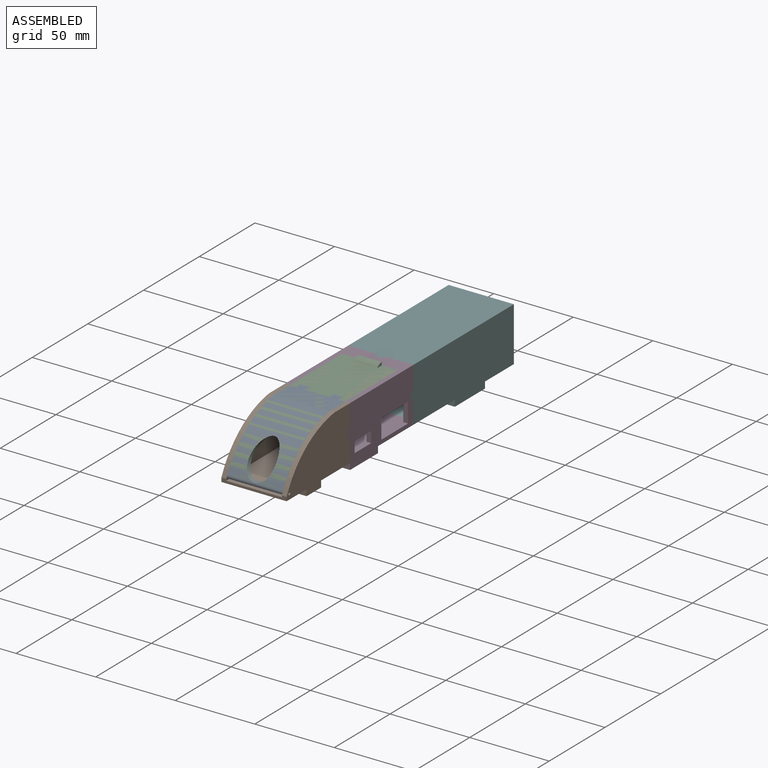
[diagram: assembled view]
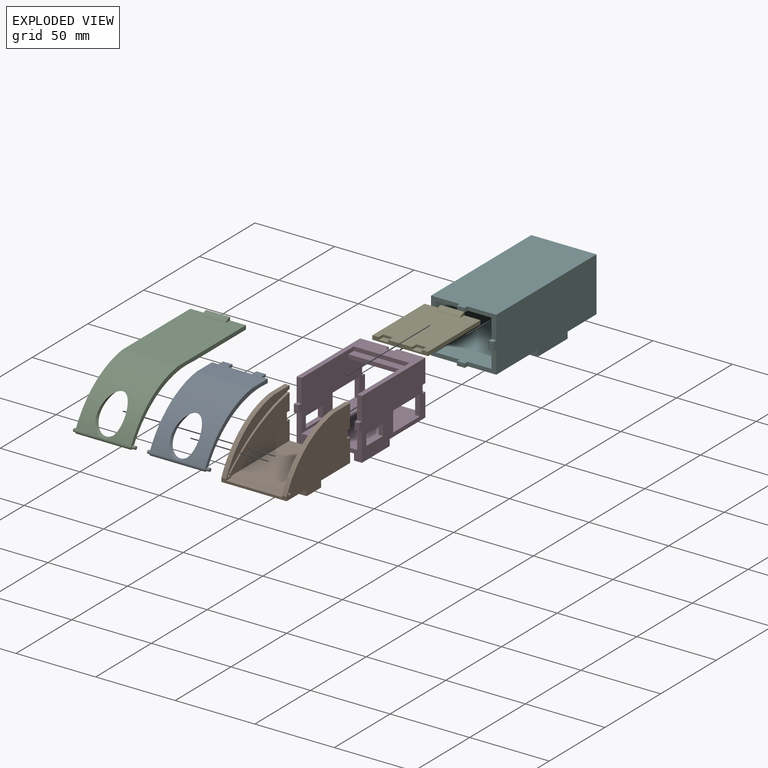
[diagram: exploded view]
GUIDED TOUR — MATED ASSEMBLY (Onshape document 684c22e2c444a2f3a1518ee3, AutoMate assembly 684c22e2c444a2f3a1518ee3_9fa53f2de91bdcdf4be7faaa_321a098ad9caceda1e651b26_default)

This assembly has 6 components, labeled P0..P5 below (a component is one placed occurrence of a part; the same part can appear more than once), held together by 5 mates. A mate is a constraint between two components; its type names the relative motion it leaves free:
  FASTENED — locks the two components together rigidly (no relative motion),
  REVOLUTE — leaves rotation about the listed axis free (a hinge).
Axis/direction vectors are unit vectors and 'through' points are millimeter coordinates, both in the assembly's world frame.

MATES
  1. FASTENED "Fastened 1": P5 <-> P3, direction (0.000, -1.000, 0.000) through (-108.95, 66.40, -22.27) mm
  2. REVOLUTE "Revolute 2": P2 <-> P1, axis (1.000, 0.000, 0.000) through (-89.45, -42.60, -20.02) mm
  3. REVOLUTE "Revolute 1": P0 <-> P1, axis (1.000, 0.000, 0.000) through (-89.45, -42.60, -20.02) mm
  4. FASTENED "Fastened 2": P3 <-> P1, direction (0.000, -1.000, 0.000) through (-108.95, 9.40, -22.27) mm
  5. FASTENED "Fastened 3": P4 <-> P0, direction (0.000, -1.000, 0.000) through (-108.95, 11.90, 9.10) mm

ASSEMBLY ORDER
  1. P2 — the base component [order heuristic]
  2. P0 — core [order heuristic]
  3. P4 [order verified]
  4. P1 [order verified]
  5. P3 [order verified]
  6. P5 [order verified]
(P4 verified with a relaxed clearance tolerance: the source model stores slight part interference there.)
Order-tag legend:
  [order verified] — this step's position reverses a verified removal order: the component was checked to insert without passing through the ones already placed.
  [order heuristic] — the first 2 components form the assembly's core: parts whose collision-free extraction could not be verified, listed in mate-graph order.

Of the 6 components, 4 carry the full construction recipe — the FeatureScript program that regenerates the part's solid from scratch; the rest are supplied as boundary geometry only.
Each toured component is shown spotlighted twice — in the assembled view, then in the exploded view, where a leader line traces a displaced component back to its assembled socket (saturated green if recipe-attached, orange if geometry-only; every other component desaturated gray) — followed by its recipe or geometry summary and the mates that hold it.
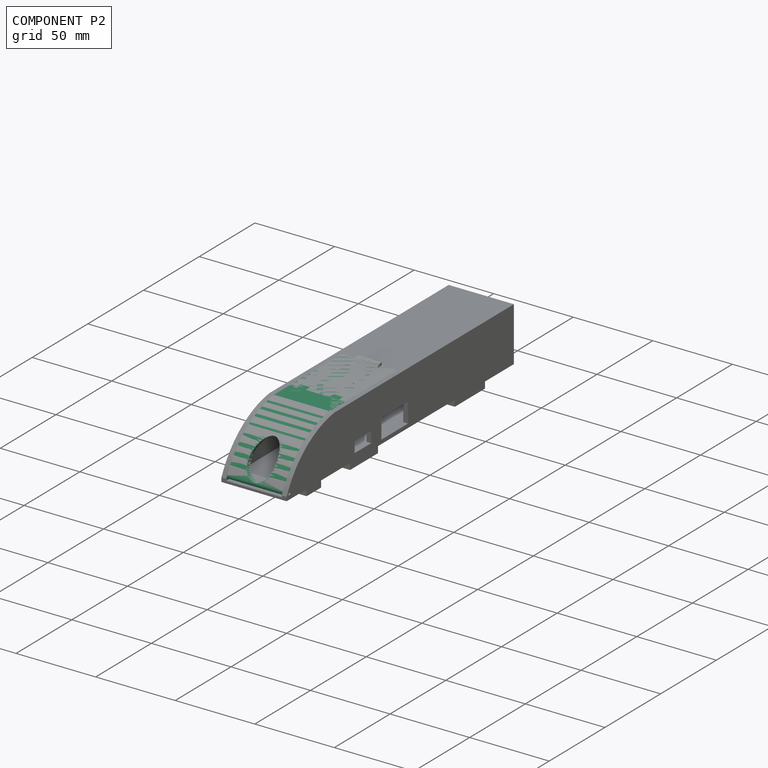
[diagram: component P2 — assembled]
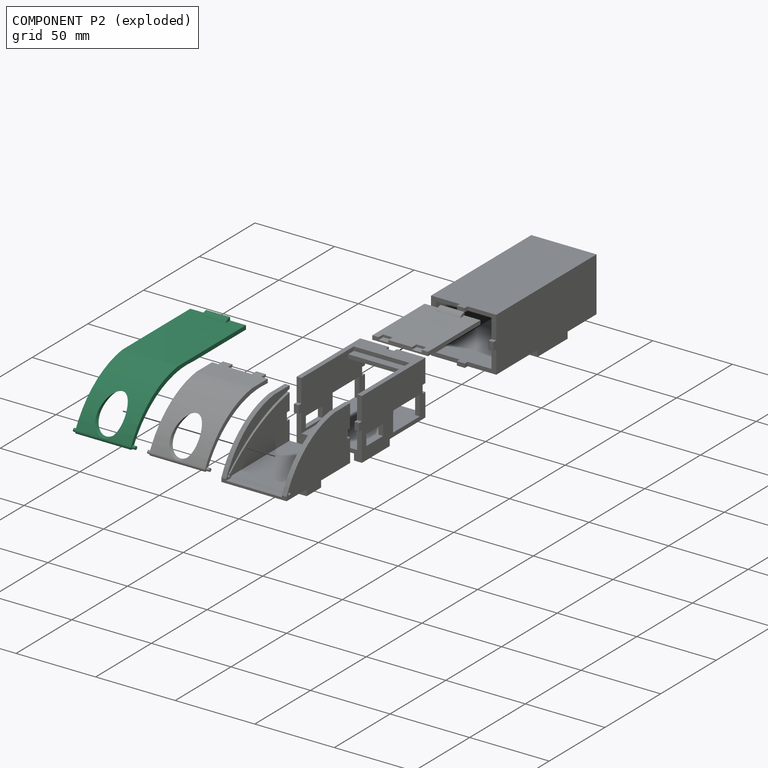
[diagram: component P2 — exploded]
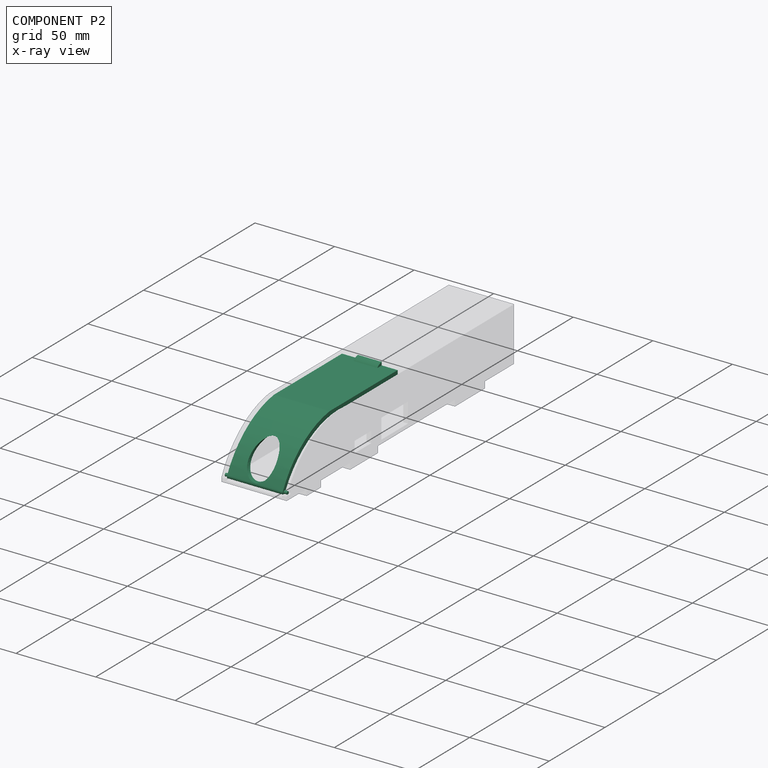
[diagram: component P2 — x-ray view]
COMPONENT P2 — recipe-attached (CADFS 00704037, mesh-verified: the recipe's output STEP matches this component's geometry to below the mesh-comparison resolution (tessellation chordal tolerance ~0.173 mm)).
Held by: REVOLUTE mate "Revolute 2" to P1.
Construction recipe (FeatureScript — the CAD program that rebuilds this solid; sketch coordinates are in the units given by the * unit suffixes, e.g. mm):

FeatureScript 1511;
import(path : "onshape/std/geometry.fs", version : "1511.0");
import(path : "onshape/std/common.fs", version : "1511.0");
const mm = millimeter;
const VERTEX = EntityType.VERTEX;
const EDGE = EntityType.EDGE;
const FACE = EntityType.FACE;
const BODY = EntityType.BODY;
function v(x, y){return vector(x, y);}
function OD(order){return orderDisambiguation(order);}
function OSD(set){return originalSetDisambiguation(set);}
function TD(topology){return topologyDisambiguation(topology);}
function TDD(query){return trueDependencyDisambiguation(query);}
function sQuery(a, b, c) {return sketchEntityQuery(a, b, c);}

annotation { "Feature Type Name" : "Feature", "Feature Type Description" : "" }
export const myFeature = defineFeature(function(context is Context, id is Id, definition is map)
    precondition{}
    {
        {
            var Q0;
            Q0=qCreatedBy(makeId("Top.planeOp"),FACE);
            var sketch = newSketch(context, id + "F0", { "sketchPlane" : qUnion([Q0])});
            skLineSegment(sketch, "E0.bottom", {"start": v(-17.4, 3.7) * mm, "end": v(17.6, 3.7) * mm});
            skLineSegment(sketch, "E0.top", {"start": v(-17.4, -53.3) * mm, "end": v(17.6, -53.3) * mm});
            skLineSegment(sketch, "E0.left", {"start": v(-17.4, 3.7) * mm, "end": v(-17.4, -53.3) * mm});
            skLineSegment(sketch, "E0.right", {"start": v(17.6, 3.7) * mm, "end": v(17.6, -53.3) * mm});
            skSolve(sketch);
        }
        {
            var Q0;
            Q0=makeQuery(id+"F0.imprint","IMPRINT",FACE,{"disambiguationData":[TD([[makeQuery(id+"F0.imprint","IMPRINT",EDGE,{"derivedFrom":sQuery(id+"F0.wireOp",EDGE,"E0.bottom")}),-1.0]])]});
            extrude(context, id + "F1", {"entities" : qUnion([Q0]), "depth" : 31.5 * mm, "offsetDistance" : 25 * mm});
        }
        {
            var Q0;
            Q0=makeQuery(id+"F1.opExtrude","SWEPT_FACE",FACE,{"disambiguationData":[OSD([sQuery(id+"F0.wireOp",EDGE,"E0.right")])]});
            var sketch = newSketch(context, id + "F2", { "sketchPlane" : qUnion([Q0])});
            skArc(sketch, "E1", {"start": v(3.7, 31.5) * mm, "mid": v(-29.97, 25.1) * mm, "end": v(-53.3, 0) * mm});
            skSolve(sketch);
        }
        {
            var Q0;
            Q0=makeQuery(id+"F1.opExtrude","SWEPT_FACE",FACE,{"disambiguationData":[OSD([sQuery(id+"F0.wireOp",EDGE,"E0.top")])]});
            var sketch = newSketch(context, id + "F3", { "sketchPlane" : qUnion([Q0])});
            skEllipse(sketch, "E2", {"center": v(0.1, 12) * mm, "majorRadius": 10 * mm, "minorRadius": 8.25 * mm, "majorAxis": v(0, -1)});
            skSolve(sketch);
        }
        {
            var Q0;
            Q0=makeQuery(id+"F3.imprint","IMPRINT",FACE,{"disambiguationData":[TD([[makeQuery(id+"F3.imprint","IMPRINT",EDGE,{"derivedFrom":sQuery(id+"F3.wireOp",EDGE,"E2")}),1.0]])]});
            extrude(context, id + "F4", {"entities" : qUnion([Q0]), "operationType" : NewBodyOperationType.REMOVE, "endBound" : BoundingType.THROUGH_ALL, "oppositeDirection" : true, "depth" : 25 * mm, "offsetDistance" : 25 * mm});
        }
        {
            var Q0;
            Q0=makeQuery(id+"F2.imprint","IMPRINT",FACE,{"disambiguationData":[TD([[makeQuery(id+"F2.imprint","IMPRINT",EDGE,{"derivedFrom":sQuery(id+"F2.wireOp",EDGE,"E1")}),-1.0]])]});
            extrude(context, id + "F5", {"entities" : qUnion([Q0]), "operationType" : NewBodyOperationType.REMOVE, "endBound" : BoundingType.THROUGH_ALL, "oppositeDirection" : true, "depth" : 25 * mm, "offsetDistance" : 25 * mm});
        }
        {
            var Q0;
            Q0=makeQuery(id+"F1.opExtrude","SWEPT_FACE",FACE,{"disambiguationData":[OSD([sQuery(id+"F0.wireOp",EDGE,"E0.right")])]});
            var sketch = newSketch(context, id + "F6", { "sketchPlane" : qUnion([Q0])});
            skArc(sketch, "E3", {"start": v(3.7, 29) * mm, "mid": v(-28, 22.87) * mm, "end": v(-50.8, 0) * mm});
            skSolve(sketch);
        }
        {
            var Q0;
            {var subQ0=sQuery(id+"F6.wireOp",EDGE,"E3");Q0=makeQuery(id+"F6.imprint","IMPRINT",FACE,{"disambiguationData":[TD([[makeQuery(id+"F6.imprint","IMPRINT",EDGE,{"derivedFrom":subQ0}),1.0]])]});}
            extrude(context, id + "F7", {"entities" : qUnion([Q0]), "operationType" : NewBodyOperationType.REMOVE, "endBound" : BoundingType.THROUGH_ALL, "oppositeDirection" : true, "depth" : 25 * mm, "offsetDistance" : 25 * mm});
        }
        {
            var Q0;
            Q0=makeQuery(id+"F1.opExtrude","SWEPT_FACE",FACE,{"disambiguationData":[OSD([sQuery(id+"F0.wireOp",EDGE,"E0.right")])]});
            var sketch = newSketch(context, id + "F8", { "sketchPlane" : qUnion([Q0])});
            skCircle(sketch, "E4", {"center": v(-50.8, 1) * mm, "radius": 1 * mm});
            skSolve(sketch);
        }
        {
            var Q0;
            {var subQ0=sQuery(id+"F8.wireOp",EDGE,"E4");var subQ1=makeQuery(id+"F7.boolean.opBoolean","COPY",EDGE,{"derivedFrom":makeQuery(id+"F7.opExtrude","CAP_EDGE",EDGE,{"disambiguationData":[OSD([sQuery(id+"F6.wireOp",EDGE,"E3")])],"isStart":true})});var subQ3=makeQuery(id+"F8.imprint","INTERSECT",VERTEX,{"derivedFrom":[subQ1,subQ0]});Q0=makeQuery(id+"F8.imprint","IMPRINT",FACE,{"disambiguationData":[TD([[makeQuery(id+"F8.imprint","IMPRINT",EDGE,{"disambiguationData":[TD([[subQ3,-1.0]])],"derivedFrom":subQ0}),1.0]])]});}
            var Q1;
            {var subQ0=sQuery(id+"F8.wireOp",EDGE,"E4");var subQ1=makeQuery(id+"F7.boolean.opBoolean","COPY",EDGE,{"derivedFrom":makeQuery(id+"F7.opExtrude","CAP_EDGE",EDGE,{"disambiguationData":[OSD([sQuery(id+"F6.wireOp",EDGE,"E3")])],"isStart":true})});var subQ3=makeQuery(id+"F8.imprint","INTERSECT",VERTEX,{"derivedFrom":[subQ1,subQ0]});Q1=makeQuery(id+"F8.imprint","IMPRINT",FACE,{"disambiguationData":[TD([[makeQuery(id+"F8.imprint","IMPRINT",EDGE,{"disambiguationData":[TD([[subQ3,1.0]])],"derivedFrom":subQ0}),1.0]])]});}
            extrude(context, id + "F9", {"entities" : qUnion([Q0, Q1]), "operationType" : NewBodyOperationType.ADD, "depth" : 2 * mm, "offsetDistance" : 25 * mm, "hasSecondDirection" : true, "secondDirectionOppositeDirection" : true, "secondDirectionDepth" : 37 * mm});
        }
        {
            var Q0;
            Q0=makeQuery(id+"F1.opExtrude","SWEPT_FACE",FACE,{"disambiguationData":[OSD([sQuery(id+"F0.wireOp",EDGE,"E0.right")])]});
            var sketch = newSketch(context, id + "F10", { "sketchPlane" : qUnion([Q0])});
            skCircle(sketch, "E5", {"center": v(-50.8, 1) * mm, "radius": 1.82 * mm});
            skSolve(sketch);
        }
        {
            var Q0;
            {var subQ0=sQuery(id+"F10.wireOp",EDGE,"E5");var subQ1=makeQuery(id+"F5.boolean.opBoolean","COPY",EDGE,{"derivedFrom":makeQuery(id+"F5.opExtrude","CAP_EDGE",EDGE,{"disambiguationData":[OSD([sQuery(id+"F2.wireOp",EDGE,"E1")])],"isStart":true})});var subQ2=makeQuery(id+"F10.imprint","INTERSECT",VERTEX,{"derivedFrom":[subQ1,subQ0]});Q0=makeQuery(id+"F10.imprint","IMPRINT",FACE,{"disambiguationData":[TD([[makeQuery(id+"F10.imprint","IMPRINT",EDGE,{"disambiguationData":[TD([[subQ2,-1.0]])],"derivedFrom":subQ0}),-1.0]])]});}
            extrude(context, id + "F11", {"entities" : qUnion([Q0]), "operationType" : NewBodyOperationType.REMOVE, "endBound" : BoundingType.THROUGH_ALL, "oppositeDirection" : true, "depth" : 25 * mm, "offsetDistance" : 25 * mm});
        }
        {
            var Q0;
            Q0=makeQuery(id+"F1.opExtrude","SWEPT_FACE",FACE,{"disambiguationData":[OSD([sQuery(id+"F0.wireOp",EDGE,"E0.bottom")])]});
            extrude(context, id + "F12", {"entities" : qUnion([Q0]), "operationType" : NewBodyOperationType.ADD, "depth" : 47 * mm, "offsetDistance" : 25 * mm});
        }
        {
            var Q0;
            {var subQ0=sQuery(id+"F0.wireOp",EDGE,"E0.bottom");Q0=makeQuery(id+"F12.boolean.opBoolean","MERGE",FACE,{"derivedFrom":[makeQuery(id+"F1.opExtrude","CAP_FACE",FACE,{"disambiguationData":[OSD([subQ0,sQuery(id+"F0.wireOp",EDGE,"E0.top"),sQuery(id+"F0.wireOp",EDGE,"E0.left"),sQuery(id+"F0.wireOp",EDGE,"E0.right")])],"isStart":false}),makeQuery(id+"F12.opExtrude","SWEPT_FACE",FACE,{"disambiguationData":[OSD([subQ0])]})]});}
            var sketch = newSketch(context, id + "F13", { "sketchPlane" : qUnion([Q0])});
            skLineSegment(sketch, "E6.bottom", {"start": v(-7.4, 50.7) * mm, "end": v(7.6, 50.7) * mm});
            skLineSegment(sketch, "E6.top", {"start": v(-7.4, 46.7) * mm, "end": v(7.6, 46.7) * mm});
            skLineSegment(sketch, "E6.left", {"start": v(-7.4, 50.7) * mm, "end": v(-7.4, 46.7) * mm});
            skLineSegment(sketch, "E6.right", {"start": v(7.6, 50.7) * mm, "end": v(7.6, 46.7) * mm});
            skSolve(sketch);
        }
        {
            var Q0;
            Q0=makeQuery(id+"F13.imprint","IMPRINT",FACE,{"disambiguationData":[TD([[makeQuery(id+"F13.imprint","IMPRINT",EDGE,{"derivedFrom":sQuery(id+"F13.wireOp",EDGE,"E6.bottom")}),-1.0]])]});
            extrude(context, id + "F14", {"entities" : qUnion([Q0]), "operationType" : NewBodyOperationType.ADD, "depth" : 2 * mm, "offsetDistance" : 25 * mm});
        }
        {
            var Q0;
            Q0=makeQuery(id+"F14.opExtrude","CAP_EDGE",EDGE,{"disambiguationData":[OSD([sQuery(id+"F13.wireOp",EDGE,"E6.top")])],"isStart":false});
            fillet(context, id + "F15", {"entities" : qUnion([Q0]), "radius" : 5 * mm, "tangentPropagation" : true, "allowEdgeOverflow" : false});
        }
        {
            var Q0;
            Q0=makeQuery(id+"F14.boolean.opBoolean","MERGE",FACE,{"derivedFrom":[makeQuery(id+"F12.opExtrude","CAP_FACE",FACE,{"disambiguationData":[OSD([sQuery(id+"F0.wireOp",EDGE,"E0.bottom")])],"isStart":false}),makeQuery(id+"F14.opExtrude","SWEPT_FACE",FACE,{"disambiguationData":[OSD([sQuery(id+"F13.wireOp",EDGE,"E6.bottom")])]})]});
            var sketch = newSketch(context, id + "F16", { "sketchPlane" : qUnion([Q0])});
            skLineSegment(sketch, "E7.bottom", {"start": v(-5.6, 33) * mm, "end": v(5.4, 33) * mm});
            skLineSegment(sketch, "E7.top", {"start": v(-5.6, 32) * mm, "end": v(5.4, 32) * mm});
            skLineSegment(sketch, "E7.left", {"start": v(-5.6, 33) * mm, "end": v(-5.6, 32) * mm});
            skLineSegment(sketch, "E7.right", {"start": v(5.4, 33) * mm, "end": v(5.4, 32) * mm});
            skSolve(sketch);
        }
        {
            var Q0;
            Q0=makeQuery(id+"F16.imprint","IMPRINT",FACE,{"disambiguationData":[TD([[makeQuery(id+"F16.imprint","IMPRINT",EDGE,{"derivedFrom":sQuery(id+"F16.wireOp",EDGE,"E7.bottom")}),-1.0]])]});
            extrude(context, id + "F17", {"entities" : qUnion([Q0]), "operationType" : NewBodyOperationType.REMOVE, "oppositeDirection" : true, "depth" : 1 * mm, "offsetDistance" : 25 * mm});
        }
    });
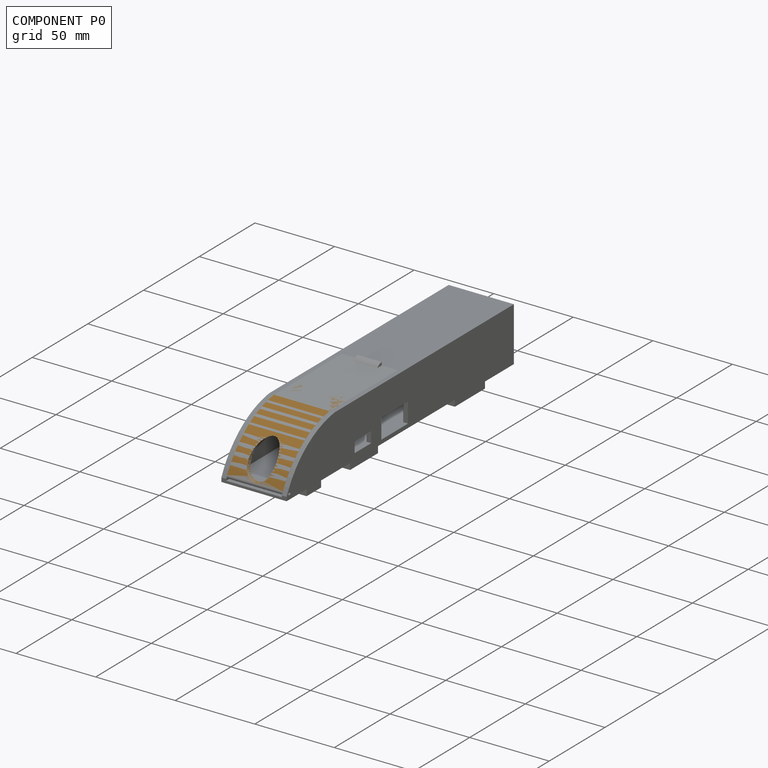
[diagram: component P0 — assembled]
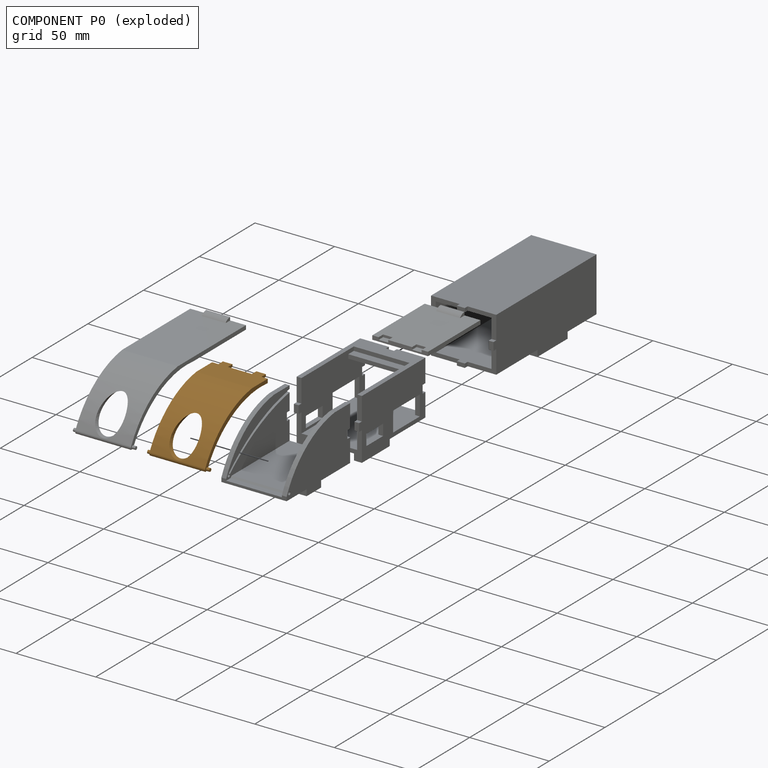
[diagram: component P0 — exploded]
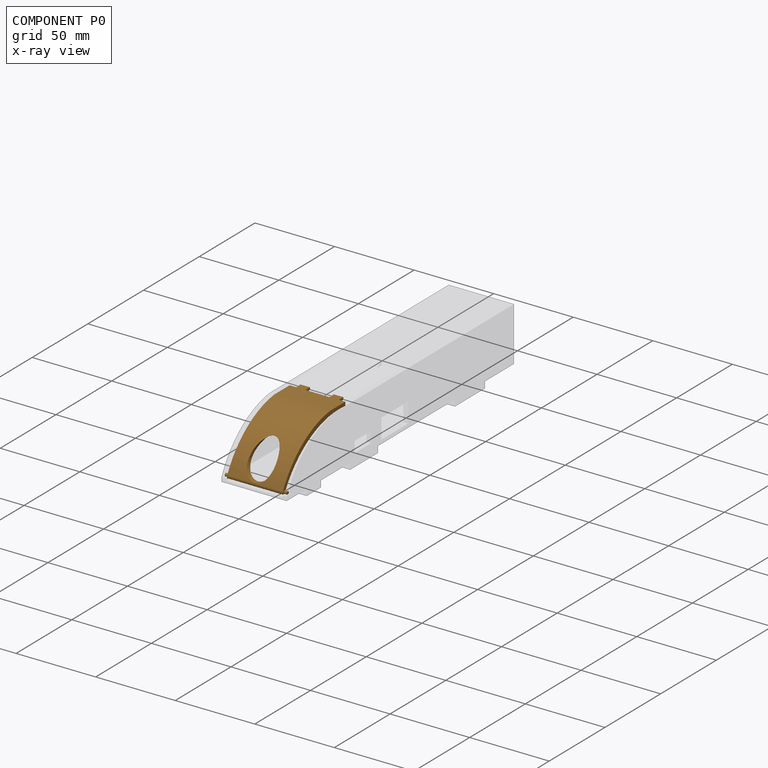
[diagram: component P0 — x-ray view]
COMPONENT P0 — geometry summary (no construction recipe available for this part):
  bounding box: 60.3 x 39.0 x 31.5 mm
  B-rep topology: 1 solid, 20 faces, 102 edges
  volume: 5418 mm^3 (7% of its bounding box)
  symmetry: mirror-symmetric across its x mid-plane
Held by: REVOLUTE mate "Revolute 1" to P1; FASTENED mate "Fastened 3" to P4.
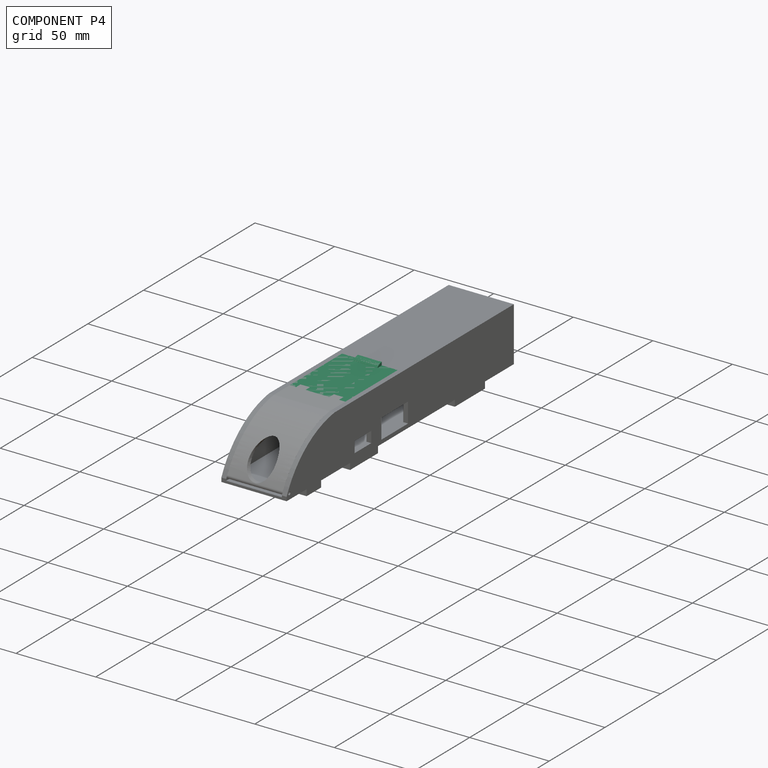
[diagram: component P4 — assembled]
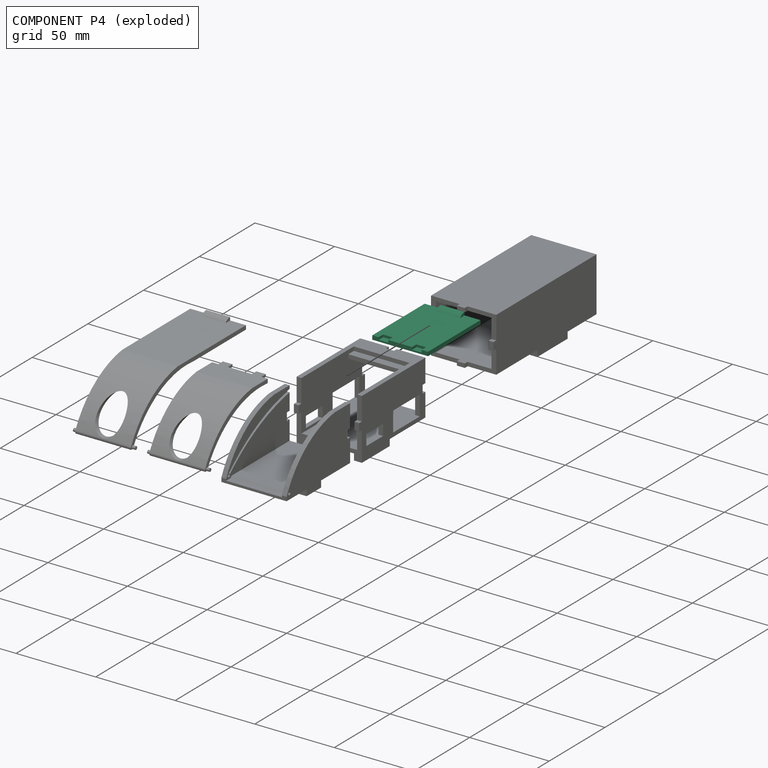
[diagram: component P4 — exploded]
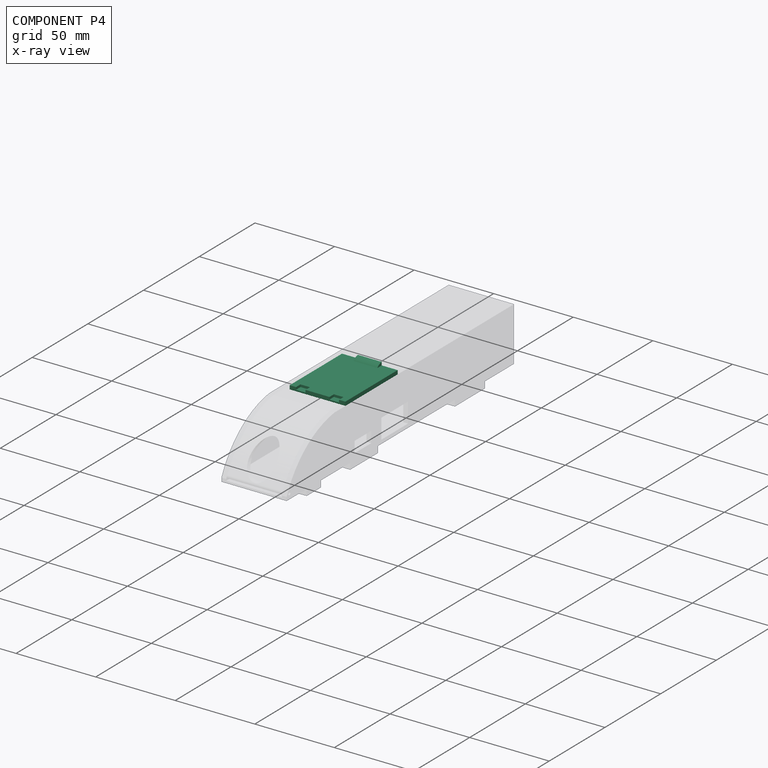
[diagram: component P4 — x-ray view]
COMPONENT P4 — recipe-attached (CADFS 00704036, mesh-verified: the recipe's output STEP matches this component's geometry to below the mesh-comparison resolution (tessellation chordal tolerance ~0.0882 mm)).
Held by: FASTENED mate "Fastened 3" to P0.
Construction recipe (FeatureScript — the CAD program that rebuilds this solid; sketch coordinates are in the units given by the * unit suffixes, e.g. mm):

FeatureScript 1511;
import(path : "onshape/std/geometry.fs", version : "1511.0");
import(path : "onshape/std/common.fs", version : "1511.0");
const mm = millimeter;
const VERTEX = EntityType.VERTEX;
const EDGE = EntityType.EDGE;
const FACE = EntityType.FACE;
const BODY = EntityType.BODY;
function v(x, y){return vector(x, y);}
function OD(order){return orderDisambiguation(order);}
function OSD(set){return originalSetDisambiguation(set);}
function TD(topology){return topologyDisambiguation(topology);}
function TDD(query){return trueDependencyDisambiguation(query);}
function sQuery(a, b, c) {return sketchEntityQuery(a, b, c);}

annotation { "Feature Type Name" : "Feature", "Feature Type Description" : "" }
export const myFeature = defineFeature(function(context is Context, id is Id, definition is map)
    precondition{}
    {
        {
            var Q0;
            Q0=qCreatedBy(makeId("Top.planeOp"),FACE);
            var sketch = newSketch(context, id + "F0", { "sketchPlane" : qUnion([Q0])});
            skLineSegment(sketch, "E0.bottom", {"start": v(-10.93, 23.2) * mm, "end": v(24.07, 23.2) * mm});
            skLineSegment(sketch, "E0.top", {"start": v(-10.93, -23.8) * mm, "end": v(24.07, -23.8) * mm});
            skLineSegment(sketch, "E0.left", {"start": v(-10.93, 23.2) * mm, "end": v(-10.93, -23.8) * mm});
            skLineSegment(sketch, "E0.right", {"start": v(24.07, 23.2) * mm, "end": v(24.07, -23.8) * mm});
            skSolve(sketch);
        }
        {
            var Q0;
            Q0=makeQuery(id+"F0.imprint","IMPRINT",FACE,{"disambiguationData":[TD([[makeQuery(id+"F0.imprint","IMPRINT",EDGE,{"derivedFrom":sQuery(id+"F0.wireOp",EDGE,"E0.bottom")}),-1.0]])]});
            extrude(context, id + "F1", {"entities" : qUnion([Q0]), "depth" : 2.5 * mm, "offsetDistance" : 25 * mm});
        }
        {
            var Q0;
            Q0=makeQuery(id+"F1.opExtrude","SWEPT_FACE",FACE,{"disambiguationData":[OSD([sQuery(id+"F0.wireOp",EDGE,"E0.top")])]});
            var sketch = newSketch(context, id + "F2", { "sketchPlane" : qUnion([Q0])});
            skLineSegment(sketch, "E1.bottom", {"start": v(-6.93, 0) * mm, "end": v(-0.93, 0) * mm});
            skLineSegment(sketch, "E1.top", {"start": v(-6.93, 1.5) * mm, "end": v(-0.93, 1.5) * mm});
            skLineSegment(sketch, "E1.left", {"start": v(-6.93, 0) * mm, "end": v(-6.93, 1.5) * mm});
            skLineSegment(sketch, "E1.right", {"start": v(-0.93, 0) * mm, "end": v(-0.93, 1.5) * mm});
            skLineSegment(sketch, "E2.bottom", {"start": v(14.07, 0) * mm, "end": v(20.07, 0) * mm});
            skLineSegment(sketch, "E2.top", {"start": v(14.07, 1.5) * mm, "end": v(20.07, 1.5) * mm});
            skLineSegment(sketch, "E2.left", {"start": v(14.07, 0) * mm, "end": v(14.07, 1.5) * mm});
            skLineSegment(sketch, "E2.right", {"start": v(20.07, 0) * mm, "end": v(20.07, 1.5) * mm});
            skSolve(sketch);
        }
        {
            var Q0;
            Q0=makeQuery(id+"F2.imprint","IMPRINT",FACE,{"disambiguationData":[TD([[makeQuery(id+"F2.imprint","IMPRINT",EDGE,{"derivedFrom":sQuery(id+"F2.wireOp",EDGE,"E1.bottom")}),1.0]])]});
            var Q1;
            Q1=makeQuery(id+"F2.imprint","IMPRINT",FACE,{"disambiguationData":[TD([[makeQuery(id+"F2.imprint","IMPRINT",EDGE,{"derivedFrom":sQuery(id+"F2.wireOp",EDGE,"E2.bottom")}),1.0]])]});
            extrude(context, id + "F3", {"entities" : qUnion([Q0, Q1]), "operationType" : NewBodyOperationType.REMOVE, "oppositeDirection" : true, "depth" : 4 * mm, "offsetDistance" : 25 * mm});
        }
        {
            var Q0;
            Q0=makeQuery(id+"F1.opExtrude","CAP_FACE",FACE,{"disambiguationData":[OSD([sQuery(id+"F0.wireOp",EDGE,"E0.bottom"),sQuery(id+"F0.wireOp",EDGE,"E0.top"),sQuery(id+"F0.wireOp",EDGE,"E0.left"),sQuery(id+"F0.wireOp",EDGE,"E0.right")])],"isStart":true});
            var sketch = newSketch(context, id + "F4", { "sketchPlane" : qUnion([Q0])});
            skLineSegment(sketch, "E3.bottom", {"start": v(-0.93, -23.2) * mm, "end": v(14.07, -23.2) * mm});
            skLineSegment(sketch, "E3.top", {"start": v(-0.93, -19.2) * mm, "end": v(14.07, -19.2) * mm});
            skLineSegment(sketch, "E3.left", {"start": v(-0.93, -23.2) * mm, "end": v(-0.93, -19.2) * mm});
            skLineSegment(sketch, "E3.right", {"start": v(14.07, -23.2) * mm, "end": v(14.07, -19.2) * mm});
            skSolve(sketch);
        }
        {
            var Q0;
            Q0=makeQuery(id+"F4.imprint","IMPRINT",FACE,{"disambiguationData":[TD([[makeQuery(id+"F4.imprint","IMPRINT",EDGE,{"derivedFrom":sQuery(id+"F4.wireOp",EDGE,"E3.bottom")}),1.0]])]});
            extrude(context, id + "F5", {"entities" : qUnion([Q0]), "operationType" : NewBodyOperationType.ADD, "depth" : 2 * mm, "offsetDistance" : 25 * mm});
        }
        {
            var Q0;
            Q0=makeQuery(id+"F5.opExtrude","CAP_EDGE",EDGE,{"disambiguationData":[OSD([sQuery(id+"F4.wireOp",EDGE,"E3.top")])],"isStart":false});
            fillet(context, id + "F6", {"entities" : qUnion([Q0]), "radius" : 5 * mm, "tangentPropagation" : true, "allowEdgeOverflow" : false});
        }
        {
            var Q0;
            Q0=makeQuery(id+"F5.boolean.opBoolean","MERGE",FACE,{"derivedFrom":[makeQuery(id+"F1.opExtrude","SWEPT_FACE",FACE,{"disambiguationData":[OSD([sQuery(id+"F0.wireOp",EDGE,"E0.bottom")])]}),makeQuery(id+"F5.opExtrude","SWEPT_FACE",FACE,{"disambiguationData":[OSD([sQuery(id+"F4.wireOp",EDGE,"E3.bottom")])]})]});
            var sketch = newSketch(context, id + "F7", { "sketchPlane" : qUnion([Q0])});
            skLineSegment(sketch, "E4.bottom", {"start": v(-12.07, -1.5) * mm, "end": v(-1.07, -1.5) * mm});
            skLineSegment(sketch, "E4.top", {"start": v(-12.07, -0.5) * mm, "end": v(-1.07, -0.5) * mm});
            skLineSegment(sketch, "E4.left", {"start": v(-12.07, -1.5) * mm, "end": v(-12.07, -0.5) * mm});
            skLineSegment(sketch, "E4.right", {"start": v(-1.07, -1.5) * mm, "end": v(-1.07, -0.5) * mm});
            skSolve(sketch);
        }
        {
            var Q0;
            Q0=makeQuery(id+"F7.imprint","IMPRINT",FACE,{"disambiguationData":[TD([[makeQuery(id+"F7.imprint","IMPRINT",EDGE,{"derivedFrom":sQuery(id+"F7.wireOp",EDGE,"E4.bottom")}),1.0]])]});
            extrude(context, id + "F8", {"entities" : qUnion([Q0]), "operationType" : NewBodyOperationType.REMOVE, "oppositeDirection" : true, "depth" : 1 * mm, "offsetDistance" : 25 * mm});
        }
    });
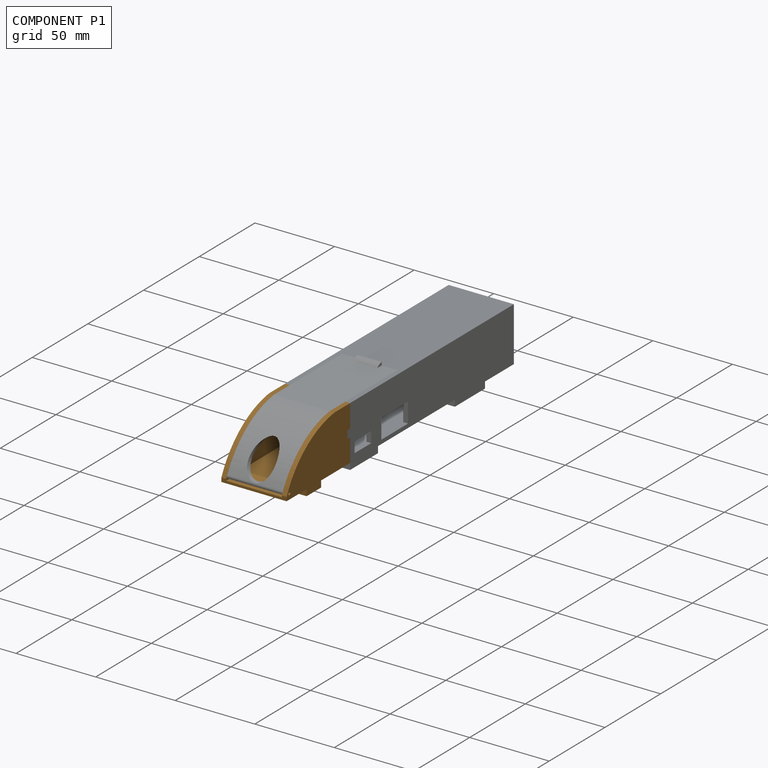
[diagram: component P1 — assembled]
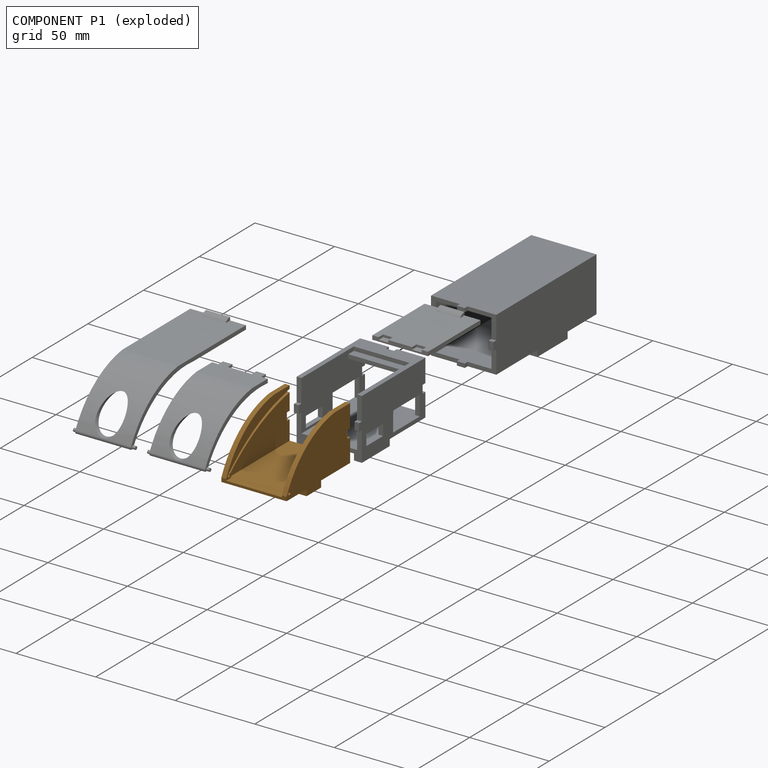
[diagram: component P1 — exploded]
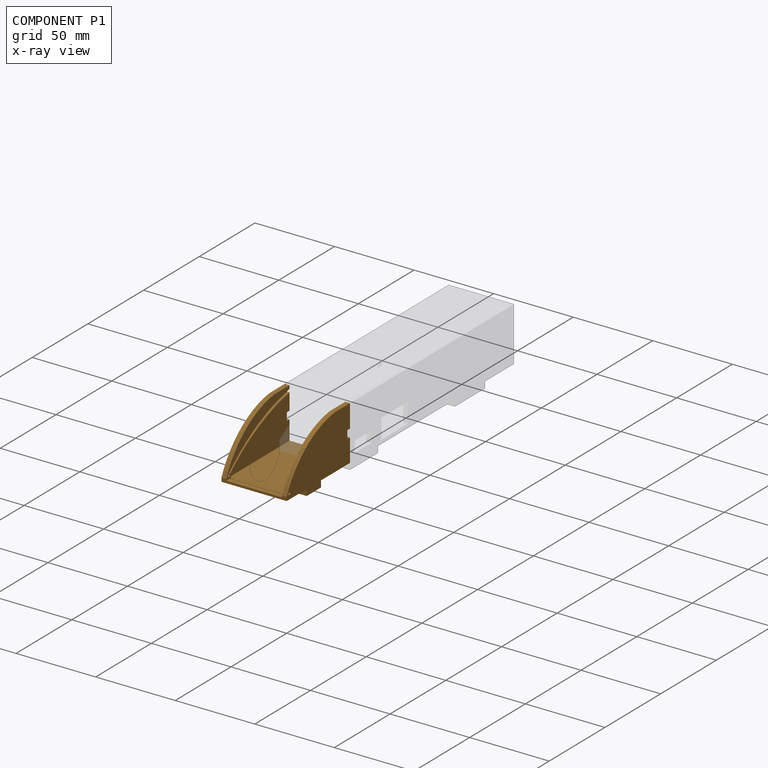
[diagram: component P1 — x-ray view]
COMPONENT P1 — geometry summary (no construction recipe available for this part):
  bounding box: 57.0 x 41.0 x 38.0 mm
  B-rep topology: 1 solid, 42 faces, 252 edges
  volume: 13980 mm^3 (16% of its bounding box)
  symmetry: mirror-symmetric across its x mid-plane
Held by: REVOLUTE mate "Revolute 2" to P2; REVOLUTE mate "Revolute 1" to P0; FASTENED mate "Fastened 2" to P3.
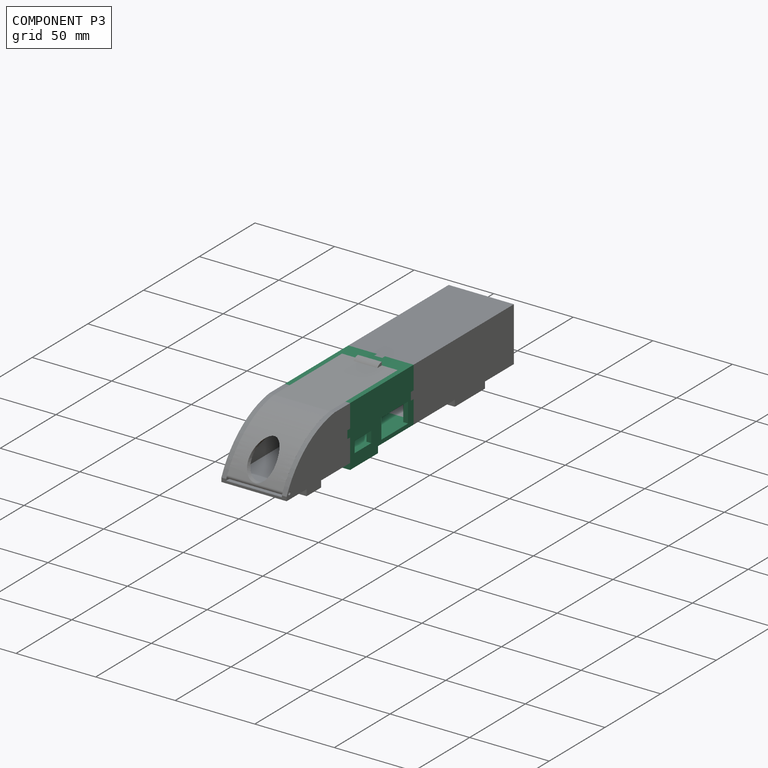
[diagram: component P3 — assembled]
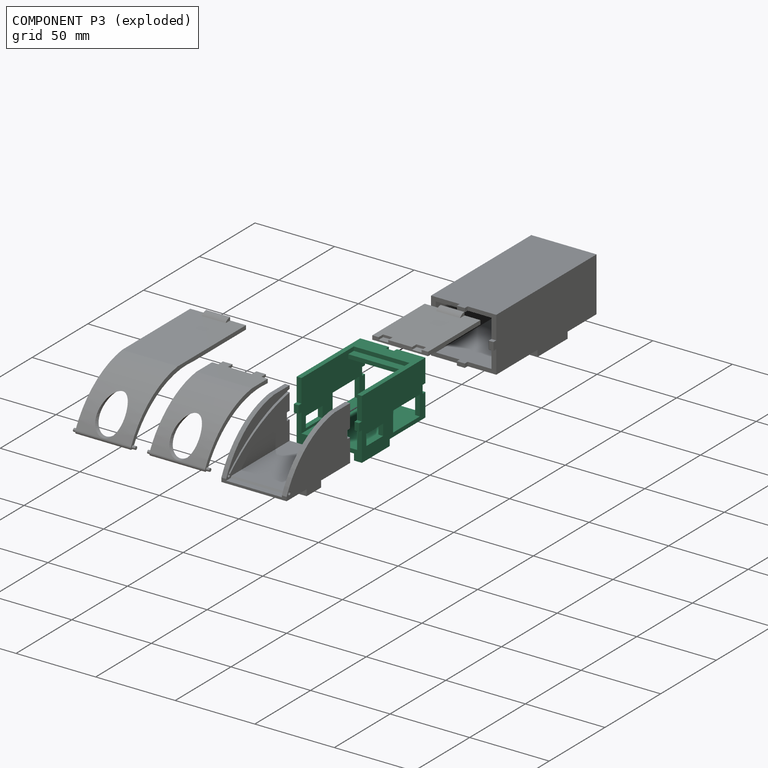
[diagram: component P3 — exploded]
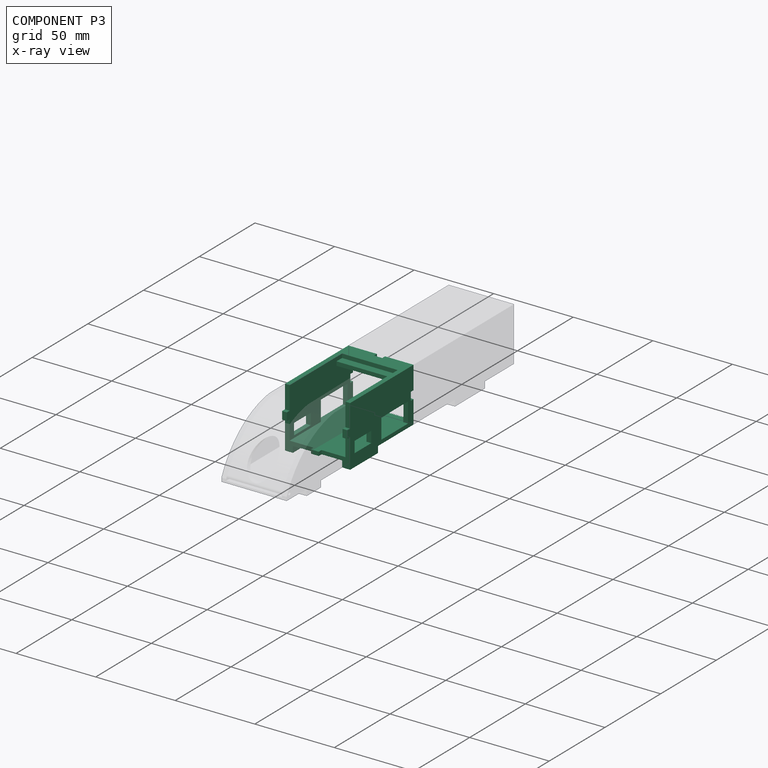
[diagram: component P3 — x-ray view]
COMPONENT P3 — recipe-attached (CADFS 00704033, mesh-verified: the recipe's output STEP matches this component's geometry to below the mesh-comparison resolution (tessellation chordal tolerance ~0.122 mm)).
Held by: FASTENED mate "Fastened 1" to P5; FASTENED mate "Fastened 2" to P1.
Construction recipe (FeatureScript — the CAD program that rebuilds this solid; sketch coordinates are in the units given by the * unit suffixes, e.g. mm):

FeatureScript 1511;
import(path : "onshape/std/geometry.fs", version : "1511.0");
import(path : "onshape/std/common.fs", version : "1511.0");
const mm = millimeter;
const VERTEX = EntityType.VERTEX;
const EDGE = EntityType.EDGE;
const FACE = EntityType.FACE;
const BODY = EntityType.BODY;
function v(x, y){return vector(x, y);}
function OD(order){return orderDisambiguation(order);}
function OSD(set){return originalSetDisambiguation(set);}
function TD(topology){return topologyDisambiguation(topology);}
function TDD(query){return trueDependencyDisambiguation(query);}
function sQuery(a, b, c) {return sketchEntityQuery(a, b, c);}

annotation { "Feature Type Name" : "Feature", "Feature Type Description" : "" }
export const myFeature = defineFeature(function(context is Context, id is Id, definition is map)
    precondition{}
    {
        {
            var Q0;
            Q0=qCreatedBy(makeId("Top.planeOp"),FACE);
            var sketch = newSketch(context, id + "F0", { "sketchPlane" : qUnion([Q0])});
            skLineSegment(sketch, "E0.bottom", {"start": v(-20.97, 15.69) * mm, "end": v(20.03, 15.69) * mm});
            skLineSegment(sketch, "E0.top", {"start": v(-20.97, -41.31) * mm, "end": v(20.03, -41.31) * mm});
            skLineSegment(sketch, "E0.left", {"start": v(-20.97, 15.69) * mm, "end": v(-20.97, -41.31) * mm});
            skLineSegment(sketch, "E0.right", {"start": v(20.03, 15.69) * mm, "end": v(20.03, -41.31) * mm});
            skSolve(sketch);
        }
        {
            var Q0;
            Q0=makeQuery(id+"F0.imprint","IMPRINT",FACE,{"disambiguationData":[TD([[makeQuery(id+"F0.imprint","IMPRINT",EDGE,{"derivedFrom":sQuery(id+"F0.wireOp",EDGE,"E0.bottom")}),-1.0]])]});
            extrude(context, id + "F1", {"entities" : qUnion([Q0]), "depth" : 34 * mm, "offsetDistance" : 25 * mm});
        }
        {
            var Q0;
            Q0=makeQuery(id+"F1.opExtrude","SWEPT_FACE",FACE,{"disambiguationData":[OSD([sQuery(id+"F0.wireOp",EDGE,"E0.top")])]});
            var sketch = newSketch(context, id + "F2", { "sketchPlane" : qUnion([Q0])});
            skLineSegment(sketch, "E1.bottom", {"start": v(-17.97, 31.5) * mm, "end": v(17.03, 31.5) * mm});
            skLineSegment(sketch, "E1.top", {"start": v(-17.97, 2.5) * mm, "end": v(17.03, 2.5) * mm});
            skLineSegment(sketch, "E1.left", {"start": v(-17.97, 31.5) * mm, "end": v(-17.97, 2.5) * mm});
            skLineSegment(sketch, "E1.right", {"start": v(17.03, 31.5) * mm, "end": v(17.03, 2.5) * mm});
            skSolve(sketch);
        }
        {
            var Q0;
            Q0=makeQuery(id+"F2.imprint","IMPRINT",FACE,{"disambiguationData":[TD([[makeQuery(id+"F2.imprint","IMPRINT",EDGE,{"derivedFrom":sQuery(id+"F2.wireOp",EDGE,"E1.bottom")}),-1.0]])]});
            extrude(context, id + "F3", {"entities" : qUnion([Q0]), "operationType" : NewBodyOperationType.REMOVE, "endBound" : BoundingType.UP_TO_NEXT, "oppositeDirection" : true, "depth" : 25 * mm, "offsetDistance" : 25 * mm});
        }
        {
            var Q0;
            Q0=makeQuery(id+"F1.opExtrude","SWEPT_FACE",FACE,{"disambiguationData":[OSD([sQuery(id+"F0.wireOp",EDGE,"E0.bottom")])]});
            var sketch = newSketch(context, id + "F4", { "sketchPlane" : qUnion([Q0])});
            skLineSegment(sketch, "E2.bottom", {"start": v(-2.03, 34) * mm, "end": v(2.97, 34) * mm});
            skLineSegment(sketch, "E2.top", {"start": v(-2.03, 31.5) * mm, "end": v(2.97, 31.5) * mm});
            skLineSegment(sketch, "E2.left", {"start": v(-2.03, 34) * mm, "end": v(-2.03, 31.5) * mm});
            skLineSegment(sketch, "E2.right", {"start": v(2.97, 34) * mm, "end": v(2.97, 31.5) * mm});
            skLineSegment(sketch, "E3.bottom", {"start": v(-2.03, 2.5) * mm, "end": v(2.97, 2.5) * mm});
            skLineSegment(sketch, "E3.top", {"start": v(-2.03, 0) * mm, "end": v(2.97, 0) * mm});
            skLineSegment(sketch, "E3.left", {"start": v(-2.03, 2.5) * mm, "end": v(-2.03, 0) * mm});
            skLineSegment(sketch, "E3.right", {"start": v(2.97, 2.5) * mm, "end": v(2.97, 0) * mm});
            skLineSegment(sketch, "E4.bottom", {"start": v(-20.03, 19.5) * mm, "end": v(-17.03, 19.5) * mm});
            skLineSegment(sketch, "E4.top", {"start": v(-20.03, 14.5) * mm, "end": v(-17.03, 14.5) * mm});
            skLineSegment(sketch, "E4.left", {"start": v(-20.03, 19.5) * mm, "end": v(-20.03, 14.5) * mm});
            skLineSegment(sketch, "E4.right", {"start": v(-17.03, 19.5) * mm, "end": v(-17.03, 14.5) * mm});
            skLineSegment(sketch, "E5.bottom", {"start": v(17.97, 19.5) * mm, "end": v(20.97, 19.5) * mm});
            skLineSegment(sketch, "E5.top", {"start": v(17.97, 14.5) * mm, "end": v(20.97, 14.5) * mm});
            skLineSegment(sketch, "E5.left", {"start": v(17.97, 19.5) * mm, "end": v(17.97, 14.5) * mm});
            skLineSegment(sketch, "E5.right", {"start": v(20.97, 19.5) * mm, "end": v(20.97, 14.5) * mm});
            skSolve(sketch);
        }
        {
            var Q0;
            Q0=makeQuery(id+"F4.imprint","IMPRINT",FACE,{"disambiguationData":[TD([[makeQuery(id+"F4.imprint","IMPRINT",EDGE,{"derivedFrom":sQuery(id+"F4.wireOp",EDGE,"E4.bottom")}),-1.0]])]});
            var Q1;
            Q1=makeQuery(id+"F4.imprint","IMPRINT",FACE,{"disambiguationData":[TD([[makeQuery(id+"F4.imprint","IMPRINT",EDGE,{"derivedFrom":sQuery(id+"F4.wireOp",EDGE,"E2.bottom")}),1.0]])]});
            var Q2;
            Q2=makeQuery(id+"F4.imprint","IMPRINT",FACE,{"disambiguationData":[TD([[makeQuery(id+"F4.imprint","IMPRINT",EDGE,{"derivedFrom":sQuery(id+"F4.wireOp",EDGE,"E5.bottom")}),-1.0]])]});
            var Q3;
            Q3=makeQuery(id+"F4.imprint","IMPRINT",FACE,{"disambiguationData":[TD([[makeQuery(id+"F4.imprint","IMPRINT",EDGE,{"derivedFrom":sQuery(id+"F4.wireOp",EDGE,"E3.bottom")}),1.0]])]});
            extrude(context, id + "F5", {"entities" : qUnion([Q0, Q1, Q2, Q3]), "operationType" : NewBodyOperationType.REMOVE, "oppositeDirection" : true, "depth" : 2.5 * mm, "offsetDistance" : 25 * mm});
        }
        {
            var Q0;
            Q0=makeQuery(id+"F1.opExtrude","SWEPT_FACE",FACE,{"disambiguationData":[OSD([sQuery(id+"F0.wireOp",EDGE,"E0.top")])]});
            var sketch = newSketch(context, id + "F6", { "sketchPlane" : qUnion([Q0])});
            skLineSegment(sketch, "E6.bottom", {"start": v(-17.97, 31.5) * mm, "end": v(17.03, 31.5) * mm});
            skLineSegment(sketch, "E6.top", {"start": v(-17.97, 34) * mm, "end": v(17.03, 34) * mm});
            skLineSegment(sketch, "E6.left", {"start": v(-17.97, 31.5) * mm, "end": v(-17.97, 34) * mm});
            skLineSegment(sketch, "E6.right", {"start": v(17.03, 31.5) * mm, "end": v(17.03, 34) * mm});
            skSolve(sketch);
        }
        {
            var Q0;
            Q0=makeQuery(id+"F6.imprint","IMPRINT",FACE,{"disambiguationData":[TD([[makeQuery(id+"F6.imprint","IMPRINT",EDGE,{"derivedFrom":sQuery(id+"F6.wireOp",EDGE,"E6.bottom")}),1.0]])]});
            extrude(context, id + "F7", {"entities" : qUnion([Q0]), "operationType" : NewBodyOperationType.REMOVE, "oppositeDirection" : true, "depth" : 47 * mm, "offsetDistance" : 25 * mm});
        }
        {
            var Q0;
            Q0=makeQuery(id+"F1.opExtrude","SWEPT_FACE",FACE,{"disambiguationData":[OSD([sQuery(id+"F0.wireOp",EDGE,"E0.right")])]});
            var sketch = newSketch(context, id + "F8", { "sketchPlane" : qUnion([Q0])});
            skLineSegment(sketch, "E7.bottom", {"start": v(10.69, 2.5) * mm, "end": v(-13.31, 2.5) * mm});
            skLineSegment(sketch, "E7.top", {"start": v(10.69, 15) * mm, "end": v(-13.31, 15) * mm});
            skLineSegment(sketch, "E7.left", {"start": v(10.69, 2.5) * mm, "end": v(10.69, 15) * mm});
            skLineSegment(sketch, "E7.right", {"start": v(-13.31, 2.5) * mm, "end": v(-13.31, 15) * mm});
            skSolve(sketch);
        }
        {
            var Q0;
            Q0=makeQuery(id+"F8.imprint","IMPRINT",FACE,{"disambiguationData":[TD([[makeQuery(id+"F8.imprint","IMPRINT",EDGE,{"derivedFrom":sQuery(id+"F8.wireOp",EDGE,"E7.bottom")}),-1.0]])]});
            extrude(context, id + "F9", {"entities" : qUnion([Q0]), "operationType" : NewBodyOperationType.REMOVE, "endBound" : BoundingType.THROUGH_ALL, "oppositeDirection" : true, "depth" : 25 * mm, "offsetDistance" : 25 * mm});
        }
        {
            var Q0;
            Q0=makeQuery(id+"F1.opExtrude","CAP_FACE",FACE,{"disambiguationData":[OSD([sQuery(id+"F0.wireOp",EDGE,"E0.bottom"),sQuery(id+"F0.wireOp",EDGE,"E0.top"),sQuery(id+"F0.wireOp",EDGE,"E0.left"),sQuery(id+"F0.wireOp",EDGE,"E0.right")])],"isStart":true});
            var sketch = newSketch(context, id + "F10", { "sketchPlane" : qUnion([Q0])});
            skLineSegment(sketch, "E8.bottom", {"start": v(20.03, 41.31) * mm, "end": v(15.03, 41.31) * mm});
            skLineSegment(sketch, "E8.top", {"start": v(20.03, 16.31) * mm, "end": v(15.03, 16.31) * mm});
            skLineSegment(sketch, "E8.left", {"start": v(20.03, 41.31) * mm, "end": v(20.03, 16.31) * mm});
            skLineSegment(sketch, "E8.right", {"start": v(15.03, 41.31) * mm, "end": v(15.03, 16.31) * mm});
            skLineSegment(sketch, "E9.bottom", {"start": v(-20.97, 41.31) * mm, "end": v(-15.97, 41.31) * mm});
            skLineSegment(sketch, "E9.top", {"start": v(-20.97, 16.31) * mm, "end": v(-15.97, 16.31) * mm});
            skLineSegment(sketch, "E9.left", {"start": v(-20.97, 41.31) * mm, "end": v(-20.97, 16.31) * mm});
            skLineSegment(sketch, "E9.right", {"start": v(-15.97, 41.31) * mm, "end": v(-15.97, 16.31) * mm});
            skSolve(sketch);
        }
        {
            var Q0;
            Q0=makeQuery(id+"F10.imprint","IMPRINT",FACE,{"disambiguationData":[TD([[makeQuery(id+"F10.imprint","IMPRINT",EDGE,{"derivedFrom":sQuery(id+"F10.wireOp",EDGE,"E8.bottom")}),-1.0]])]});
            var Q1;
            Q1=makeQuery(id+"F10.imprint","IMPRINT",FACE,{"disambiguationData":[TD([[makeQuery(id+"F10.imprint","IMPRINT",EDGE,{"derivedFrom":sQuery(id+"F10.wireOp",EDGE,"E9.bottom")}),-1.0]])]});
            extrude(context, id + "F11", {"entities" : qUnion([Q0, Q1]), "operationType" : NewBodyOperationType.ADD, "depth" : 4 * mm, "offsetDistance" : 25 * mm});
        }
        {
            var Q0;
            Q0=makeQuery(id+"F11.boolean.opBoolean","MERGE",FACE,{"derivedFrom":[makeQuery(id+"F1.opExtrude","SWEPT_FACE",FACE,{"disambiguationData":[OSD([sQuery(id+"F0.wireOp",EDGE,"E0.right")])]}),makeQuery(id+"F11.opExtrude","SWEPT_FACE",FACE,{"disambiguationData":[OSD([sQuery(id+"F10.wireOp",EDGE,"E8.left")])]})]});
            var sketch = newSketch(context, id + "F12", { "sketchPlane" : qUnion([Q0])});
            skLineSegment(sketch, "E10.bottom", {"start": v(-37.31, 11) * mm, "end": v(-22.31, 11) * mm});
            skLineSegment(sketch, "E10.top", {"start": v(-37.31, 4) * mm, "end": v(-22.31, 4) * mm});
            skLineSegment(sketch, "E10.left", {"start": v(-37.31, 11) * mm, "end": v(-37.31, 4) * mm});
            skLineSegment(sketch, "E10.right", {"start": v(-22.31, 11) * mm, "end": v(-22.31, 4) * mm});
            skSolve(sketch);
        }
        {
            var Q0;
            Q0=makeQuery(id+"F12.imprint","IMPRINT",FACE,{"disambiguationData":[TD([[makeQuery(id+"F12.imprint","IMPRINT",EDGE,{"derivedFrom":sQuery(id+"F12.wireOp",EDGE,"E10.bottom")}),-1.0]])]});
            extrude(context, id + "F13", {"entities" : qUnion([Q0]), "operationType" : NewBodyOperationType.REMOVE, "endBound" : BoundingType.THROUGH_ALL, "oppositeDirection" : true, "depth" : 25 * mm, "offsetDistance" : 25 * mm});
        }
        {
            var Q0;
            Q0=makeQuery(id+"F3.boolean.opBoolean","COPY",FACE,{"derivedFrom":makeQuery(id+"F3.opExtrude","SWEPT_FACE",FACE,{"disambiguationData":[OSD([sQuery(id+"F2.wireOp",EDGE,"E1.bottom")])]})});
            extrude(context, id + "F14", {"entities" : qUnion([Q0]), "operationType" : NewBodyOperationType.ADD, "depth" : 2.5 * mm, "offsetDistance" : 25 * mm});
        }
        {
            var Q0;
            {var subQ0=sQuery(id+"F6.wireOp",EDGE,"E6.bottom");Q0=makeQuery(id+"F14.boolean.opBoolean","MERGE",FACE,{"derivedFrom":[makeQuery(id+"F7.boolean.opBoolean","COPY",FACE,{"derivedFrom":makeQuery(id+"F7.opExtrude","CAP_FACE",FACE,{"disambiguationData":[OSD([subQ0,sQuery(id+"F6.wireOp",EDGE,"E6.top"),sQuery(id+"F6.wireOp",EDGE,"E6.left"),sQuery(id+"F6.wireOp",EDGE,"E6.right")])],"isStart":false})}),makeQuery(id+"F14.opExtrude","SWEPT_FACE",FACE,{"disambiguationData":[OSD([subQ0])]})]});}
            var sketch = newSketch(context, id + "F15", { "sketchPlane" : qUnion([Q0])});
            skLineSegment(sketch, "E11.bottom", {"start": v(-17.97, 29) * mm, "end": v(17.03, 29) * mm});
            skLineSegment(sketch, "E11.top", {"start": v(-17.97, 31.5) * mm, "end": v(17.03, 31.5) * mm});
            skLineSegment(sketch, "E11.left", {"start": v(-17.97, 29) * mm, "end": v(-17.97, 31.5) * mm});
            skLineSegment(sketch, "E11.right", {"start": v(17.03, 29) * mm, "end": v(17.03, 31.5) * mm});
            skSolve(sketch);
        }
        {
            var Q0;
            Q0=makeQuery(id+"F15.imprint","IMPRINT",FACE,{"disambiguationData":[TD([[makeQuery(id+"F15.imprint","IMPRINT",EDGE,{"derivedFrom":sQuery(id+"F15.wireOp",EDGE,"E11.bottom")}),1.0]])]});
            extrude(context, id + "F16", {"entities" : qUnion([Q0]), "operationType" : NewBodyOperationType.ADD, "depth" : 5 * mm, "offsetDistance" : 25 * mm});
        }
        {
            var Q0;
            Q0=makeQuery(id+"F11.boolean.opBoolean","MERGE",FACE,{"derivedFrom":[makeQuery(id+"F1.opExtrude","SWEPT_FACE",FACE,{"disambiguationData":[OSD([sQuery(id+"F0.wireOp",EDGE,"E0.top")])]}),makeQuery(id+"F11.opExtrude","SWEPT_FACE",FACE,{"disambiguationData":[OSD([sQuery(id+"F10.wireOp",EDGE,"E8.bottom")])]}),makeQuery(id+"F11.opExtrude","SWEPT_FACE",FACE,{"disambiguationData":[OSD([sQuery(id+"F10.wireOp",EDGE,"E9.bottom")])]})]});
            var sketch = newSketch(context, id + "F17", { "sketchPlane" : qUnion([Q0])});
            skLineSegment(sketch, "E12.bottom", {"start": v(-2.97, 2.5) * mm, "end": v(2.03, 2.5) * mm});
            skLineSegment(sketch, "E12.top", {"start": v(-2.97, 0) * mm, "end": v(2.03, 0) * mm});
            skLineSegment(sketch, "E12.left", {"start": v(-2.97, 2.5) * mm, "end": v(-2.97, 0) * mm});
            skLineSegment(sketch, "E12.right", {"start": v(2.03, 2.5) * mm, "end": v(2.03, 0) * mm});
            skLineSegment(sketch, "E13.bottom", {"start": v(-20.97, 19.5) * mm, "end": v(-17.97, 19.5) * mm});
            skLineSegment(sketch, "E13.top", {"start": v(-20.97, 14.5) * mm, "end": v(-17.97, 14.5) * mm});
            skLineSegment(sketch, "E13.left", {"start": v(-20.97, 19.5) * mm, "end": v(-20.97, 14.5) * mm});
            skLineSegment(sketch, "E13.right", {"start": v(-17.97, 19.5) * mm, "end": v(-17.97, 14.5) * mm});
            skLineSegment(sketch, "E14.bottom", {"start": v(17.03, 19.5) * mm, "end": v(20.03, 19.5) * mm});
            skLineSegment(sketch, "E14.top", {"start": v(17.03, 14.5) * mm, "end": v(20.03, 14.5) * mm});
            skLineSegment(sketch, "E14.left", {"start": v(17.03, 19.5) * mm, "end": v(17.03, 14.5) * mm});
            skLineSegment(sketch, "E14.right", {"start": v(20.03, 19.5) * mm, "end": v(20.03, 14.5) * mm});
            skSolve(sketch);
        }
        {
            var Q0;
            Q0=makeQuery(id+"F17.imprint","IMPRINT",FACE,{"disambiguationData":[TD([[makeQuery(id+"F17.imprint","IMPRINT",EDGE,{"derivedFrom":sQuery(id+"F17.wireOp",EDGE,"E14.bottom")}),-1.0]])]});
            var Q1;
            Q1=makeQuery(id+"F17.imprint","IMPRINT",FACE,{"disambiguationData":[TD([[makeQuery(id+"F17.imprint","IMPRINT",EDGE,{"derivedFrom":sQuery(id+"F17.wireOp",EDGE,"E13.bottom")}),-1.0]])]});
            var Q2;
            Q2=makeQuery(id+"F17.imprint","IMPRINT",FACE,{"disambiguationData":[TD([[makeQuery(id+"F17.imprint","IMPRINT",EDGE,{"derivedFrom":sQuery(id+"F17.wireOp",EDGE,"E12.bottom")}),-1.0]])]});
            extrude(context, id + "F18", {"entities" : qUnion([Q0, Q1, Q2]), "operationType" : NewBodyOperationType.ADD, "depth" : 2.5 * mm, "offsetDistance" : 25 * mm});
        }
    });
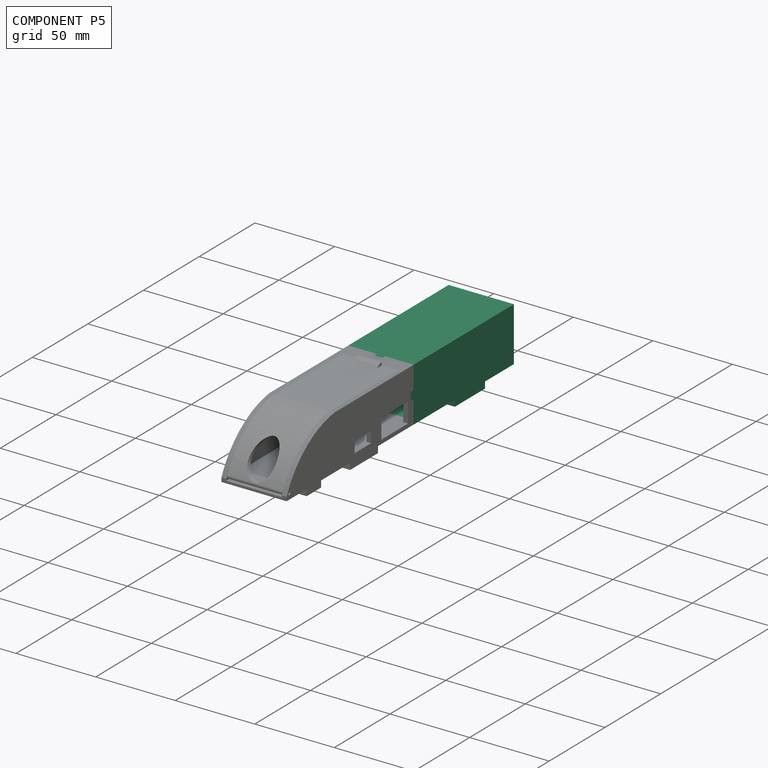
[diagram: component P5 — assembled]
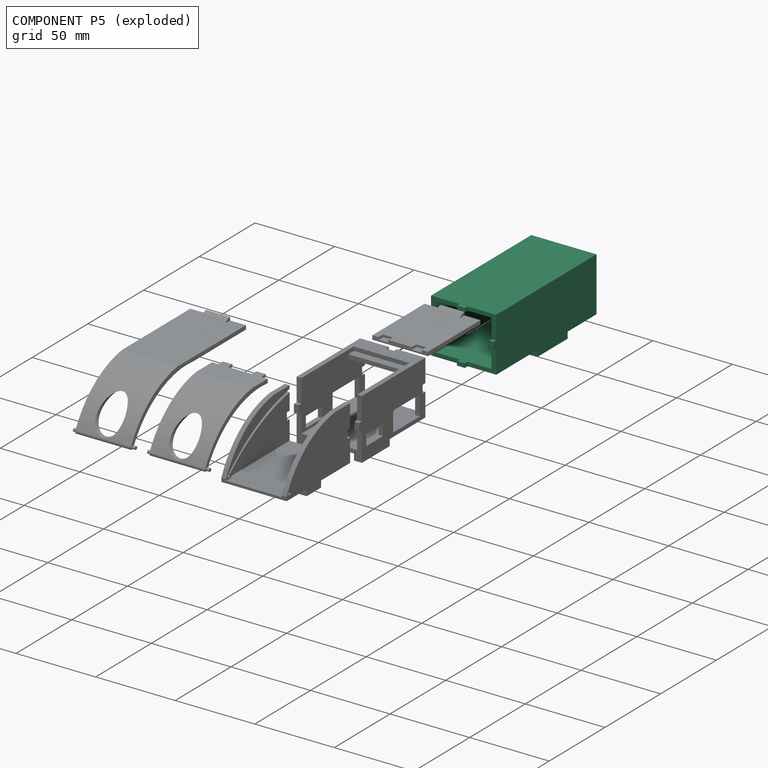
[diagram: component P5 — exploded]
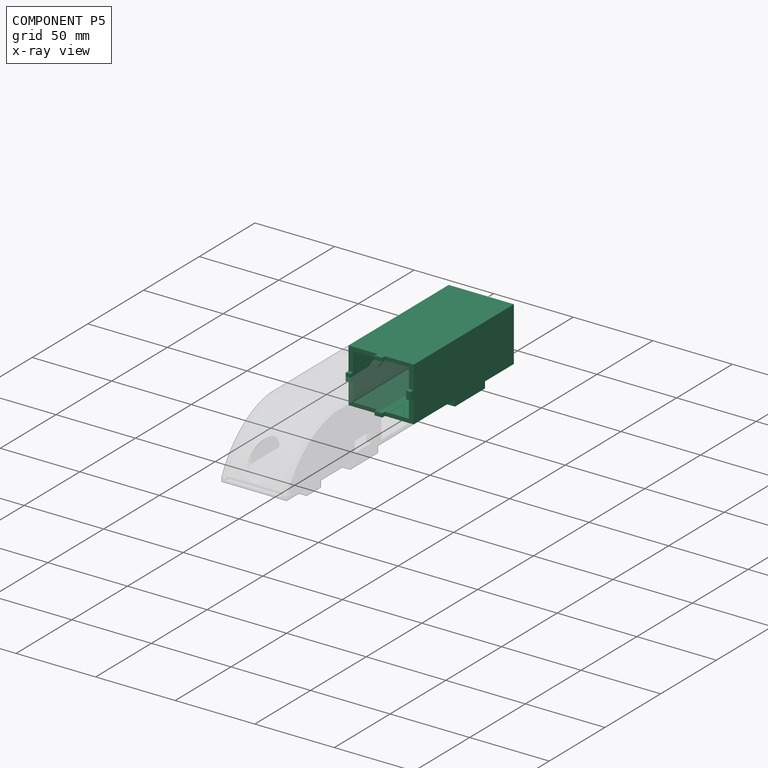
[diagram: component P5 — x-ray view]
COMPONENT P5 — recipe-attached (CADFS 00704032, mesh-verified: the recipe's output STEP matches this component's geometry to below the mesh-comparison resolution (tessellation chordal tolerance ~0.162 mm)).
Held by: FASTENED mate "Fastened 1" to P3.
Construction recipe (FeatureScript — the CAD program that rebuilds this solid; sketch coordinates are in the units given by the * unit suffixes, e.g. mm):

FeatureScript 1511;
import(path : "onshape/std/geometry.fs", version : "1511.0");
import(path : "onshape/std/common.fs", version : "1511.0");
const mm = millimeter;
const VERTEX = EntityType.VERTEX;
const EDGE = EntityType.EDGE;
const FACE = EntityType.FACE;
const BODY = EntityType.BODY;
function v(x, y){return vector(x, y);}
function OD(order){return orderDisambiguation(order);}
function OSD(set){return originalSetDisambiguation(set);}
function TD(topology){return topologyDisambiguation(topology);}
function TDD(query){return trueDependencyDisambiguation(query);}
function sQuery(a, b, c) {return sketchEntityQuery(a, b, c);}

annotation { "Feature Type Name" : "Feature", "Feature Type Description" : "" }
export const myFeature = defineFeature(function(context is Context, id is Id, definition is map)
    precondition{}
    {
        {
            var Q0;
            Q0=qCreatedBy(makeId("Top.planeOp"),FACE);
            var sketch = newSketch(context, id + "F0", { "sketchPlane" : qUnion([Q0])});
            skLineSegment(sketch, "E0.bottom", {"start": v(-22.2, 49.2) * mm, "end": v(18.8, 49.2) * mm});
            skLineSegment(sketch, "E0.top", {"start": v(-22.2, -40.8) * mm, "end": v(18.8, -40.8) * mm});
            skLineSegment(sketch, "E0.left", {"start": v(-22.2, 49.2) * mm, "end": v(-22.2, -40.8) * mm});
            skLineSegment(sketch, "E0.right", {"start": v(18.8, 49.2) * mm, "end": v(18.8, -40.8) * mm});
            skSolve(sketch);
        }
        {
            var Q0;
            Q0=makeQuery(id+"F0.imprint","IMPRINT",FACE,{"disambiguationData":[TD([[makeQuery(id+"F0.imprint","IMPRINT",EDGE,{"derivedFrom":sQuery(id+"F0.wireOp",EDGE,"E0.bottom")}),-1.0]])]});
            extrude(context, id + "F1", {"entities" : qUnion([Q0]), "depth" : 34 * mm, "offsetDistance" : 25 * mm});
        }
        {
            var Q0;
            Q0=makeQuery(id+"F1.opExtrude","SWEPT_FACE",FACE,{"disambiguationData":[OSD([sQuery(id+"F0.wireOp",EDGE,"E0.top")])]});
            var sketch = newSketch(context, id + "F2", { "sketchPlane" : qUnion([Q0])});
            skLineSegment(sketch, "E1.bottom", {"start": v(-19.2, 31.5) * mm, "end": v(15.8, 31.5) * mm});
            skLineSegment(sketch, "E1.top", {"start": v(-19.2, 2.5) * mm, "end": v(15.8, 2.5) * mm});
            skLineSegment(sketch, "E1.left", {"start": v(-19.2, 31.5) * mm, "end": v(-19.2, 2.5) * mm});
            skLineSegment(sketch, "E1.right", {"start": v(15.8, 31.5) * mm, "end": v(15.8, 2.5) * mm});
            skSolve(sketch);
        }
        {
            var Q0;
            Q0=makeQuery(id+"F2.imprint","IMPRINT",FACE,{"disambiguationData":[TD([[makeQuery(id+"F2.imprint","IMPRINT",EDGE,{"derivedFrom":sQuery(id+"F2.wireOp",EDGE,"E1.bottom")}),-1.0]])]});
            extrude(context, id + "F3", {"entities" : qUnion([Q0]), "operationType" : NewBodyOperationType.REMOVE, "oppositeDirection" : true, "depth" : 86 * mm, "offsetDistance" : 25 * mm});
        }
        {
            var Q0;
            Q0=makeQuery(id+"F1.opExtrude","SWEPT_FACE",FACE,{"disambiguationData":[OSD([sQuery(id+"F0.wireOp",EDGE,"E0.bottom")])]});
            var sketch = newSketch(context, id + "F4", { "sketchPlane" : qUnion([Q0])});
            skCircle(sketch, "E2", {"center": v(1.7, 17) * mm, "radius": 4 * mm});
            skCircle(sketch, "E3", {"center": v(-7.8, 17) * mm, "radius": 1.55 * mm});
            skCircle(sketch, "E4", {"center": v(11.2, 17) * mm, "radius": 1.55 * mm});
            skLineSegment(sketch, "E5.bottom", {"start": v(11.2, 30) * mm, "end": v(18.2, 30) * mm});
            skLineSegment(sketch, "E5.top", {"start": v(11.2, 24) * mm, "end": v(18.2, 24) * mm});
            skLineSegment(sketch, "E5.left", {"start": v(11.2, 30) * mm, "end": v(11.2, 24) * mm});
            skLineSegment(sketch, "E5.right", {"start": v(18.2, 30) * mm, "end": v(18.2, 24) * mm});
            skLineSegment(sketch, "E6.bottom", {"start": v(-14.8, 10) * mm, "end": v(-7.8, 10) * mm});
            skLineSegment(sketch, "E6.top", {"start": v(-14.8, 4) * mm, "end": v(-7.8, 4) * mm});
            skLineSegment(sketch, "E6.left", {"start": v(-14.8, 10) * mm, "end": v(-14.8, 4) * mm});
            skLineSegment(sketch, "E6.right", {"start": v(-7.8, 10) * mm, "end": v(-7.8, 4) * mm});
            skCircle(sketch, "E7", {"center": v(1.7, 9) * mm, "radius": 1.55 * mm});
            skCircle(sketch, "E8", {"center": v(1.7, 25) * mm, "radius": 1.55 * mm});
            skSolve(sketch);
        }
        {
            var Q0;
            Q0=makeQuery(id+"F4.imprint","IMPRINT",FACE,{"disambiguationData":[TD([[makeQuery(id+"F4.imprint","IMPRINT",EDGE,{"derivedFrom":sQuery(id+"F4.wireOp",EDGE,"E6.bottom")}),-1.0]])]});
            var Q1;
            Q1=makeQuery(id+"F4.imprint","IMPRINT",FACE,{"disambiguationData":[TD([[makeQuery(id+"F4.imprint","IMPRINT",EDGE,{"derivedFrom":sQuery(id+"F4.wireOp",EDGE,"E3")}),1.0]])]});
            var Q2;
            Q2=makeQuery(id+"F4.imprint","IMPRINT",FACE,{"disambiguationData":[TD([[makeQuery(id+"F4.imprint","IMPRINT",EDGE,{"derivedFrom":sQuery(id+"F4.wireOp",EDGE,"E8")}),1.0]])]});
            var Q3;
            Q3=makeQuery(id+"F4.imprint","IMPRINT",FACE,{"disambiguationData":[TD([[makeQuery(id+"F4.imprint","IMPRINT",EDGE,{"derivedFrom":sQuery(id+"F4.wireOp",EDGE,"E2")}),1.0]])]});
            var Q4;
            Q4=makeQuery(id+"F4.imprint","IMPRINT",FACE,{"disambiguationData":[TD([[makeQuery(id+"F4.imprint","IMPRINT",EDGE,{"derivedFrom":sQuery(id+"F4.wireOp",EDGE,"E7")}),1.0]])]});
            var Q5;
            Q5=makeQuery(id+"F4.imprint","IMPRINT",FACE,{"disambiguationData":[TD([[makeQuery(id+"F4.imprint","IMPRINT",EDGE,{"derivedFrom":sQuery(id+"F4.wireOp",EDGE,"E4")}),1.0]])]});
            var Q6;
            Q6=makeQuery(id+"F4.imprint","IMPRINT",FACE,{"disambiguationData":[TD([[makeQuery(id+"F4.imprint","IMPRINT",EDGE,{"derivedFrom":sQuery(id+"F4.wireOp",EDGE,"E5.bottom")}),-1.0]])]});
            extrude(context, id + "F5", {"entities" : qUnion([Q0, Q1, Q2, Q3, Q4, Q5, Q6]), "operationType" : NewBodyOperationType.REMOVE, "endBound" : BoundingType.UP_TO_NEXT, "oppositeDirection" : true, "depth" : 25 * mm, "offsetDistance" : 25 * mm});
        }
        {
            var Q0;
            Q0=makeQuery(id+"F1.opExtrude","SWEPT_FACE",FACE,{"disambiguationData":[OSD([sQuery(id+"F0.wireOp",EDGE,"E0.top")])]});
            var sketch = newSketch(context, id + "F6", { "sketchPlane" : qUnion([Q0])});
            skLineSegment(sketch, "E9.bottom", {"start": v(-4.2, 34) * mm, "end": v(0.8, 34) * mm});
            skLineSegment(sketch, "E9.top", {"start": v(-4.2, 31.5) * mm, "end": v(0.8, 31.5) * mm});
            skLineSegment(sketch, "E9.left", {"start": v(-4.2, 34) * mm, "end": v(-4.2, 31.5) * mm});
            skLineSegment(sketch, "E9.right", {"start": v(0.8, 34) * mm, "end": v(0.8, 31.5) * mm});
            skLineSegment(sketch, "E10.bottom", {"start": v(-4.2, 2.5) * mm, "end": v(0.8, 2.5) * mm});
            skLineSegment(sketch, "E10.top", {"start": v(-4.2, 0) * mm, "end": v(0.8, 0) * mm});
            skLineSegment(sketch, "E10.left", {"start": v(-4.2, 2.5) * mm, "end": v(-4.2, 0) * mm});
            skLineSegment(sketch, "E10.right", {"start": v(0.8, 2.5) * mm, "end": v(0.8, 0) * mm});
            skLineSegment(sketch, "E11.bottom", {"start": v(-22.2, 19.5) * mm, "end": v(-19.2, 19.5) * mm});
            skLineSegment(sketch, "E11.top", {"start": v(-22.2, 14.5) * mm, "end": v(-19.2, 14.5) * mm});
            skLineSegment(sketch, "E11.left", {"start": v(-22.2, 19.5) * mm, "end": v(-22.2, 14.5) * mm});
            skLineSegment(sketch, "E11.right", {"start": v(-19.2, 19.5) * mm, "end": v(-19.2, 14.5) * mm});
            skLineSegment(sketch, "E12.bottom", {"start": v(15.8, 19.5) * mm, "end": v(18.8, 19.5) * mm});
            skLineSegment(sketch, "E12.top", {"start": v(15.8, 14.5) * mm, "end": v(18.8, 14.5) * mm});
            skLineSegment(sketch, "E12.left", {"start": v(15.8, 19.5) * mm, "end": v(15.8, 14.5) * mm});
            skLineSegment(sketch, "E12.right", {"start": v(18.8, 19.5) * mm, "end": v(18.8, 14.5) * mm});
            skSolve(sketch);
        }
        {
            var Q0;
            Q0=makeQuery(id+"F6.imprint","IMPRINT",FACE,{"disambiguationData":[TD([[makeQuery(id+"F6.imprint","IMPRINT",EDGE,{"derivedFrom":sQuery(id+"F6.wireOp",EDGE,"E9.bottom")}),-1.0]])]});
            var Q1;
            Q1=makeQuery(id+"F6.imprint","IMPRINT",FACE,{"disambiguationData":[TD([[makeQuery(id+"F6.imprint","IMPRINT",EDGE,{"derivedFrom":sQuery(id+"F6.wireOp",EDGE,"E11.bottom")}),-1.0]])]});
            var Q2;
            Q2=makeQuery(id+"F6.imprint","IMPRINT",FACE,{"disambiguationData":[TD([[makeQuery(id+"F6.imprint","IMPRINT",EDGE,{"derivedFrom":sQuery(id+"F6.wireOp",EDGE,"E12.bottom")}),-1.0]])]});
            var Q3;
            Q3=makeQuery(id+"F6.imprint","IMPRINT",FACE,{"disambiguationData":[TD([[makeQuery(id+"F6.imprint","IMPRINT",EDGE,{"derivedFrom":sQuery(id+"F6.wireOp",EDGE,"E10.bottom")}),-1.0]])]});
            extrude(context, id + "F7", {"entities" : qUnion([Q0, Q1, Q2, Q3]), "operationType" : NewBodyOperationType.ADD, "depth" : 2.5 * mm, "offsetDistance" : 25 * mm});
        }
        {
            var Q0;
            Q0=makeQuery(id+"F7.boolean.opBoolean","MERGE",FACE,{"derivedFrom":[makeQuery(id+"F1.opExtrude","CAP_FACE",FACE,{"disambiguationData":[OSD([sQuery(id+"F0.wireOp",EDGE,"E0.bottom"),sQuery(id+"F0.wireOp",EDGE,"E0.top"),sQuery(id+"F0.wireOp",EDGE,"E0.left"),sQuery(id+"F0.wireOp",EDGE,"E0.right")])],"isStart":true}),makeQuery(id+"F7.opExtrude","SWEPT_FACE",FACE,{"disambiguationData":[OSD([sQuery(id+"F6.wireOp",EDGE,"E10.top")])]})]});
            var sketch = newSketch(context, id + "F8", { "sketchPlane" : qUnion([Q0])});
            skLineSegment(sketch, "E13.bottom", {"start": v(18.8, -23.2) * mm, "end": v(13.8, -23.2) * mm});
            skLineSegment(sketch, "E13.top", {"start": v(18.8, 3.8) * mm, "end": v(13.8, 3.8) * mm});
            skLineSegment(sketch, "E13.left", {"start": v(18.8, -23.2) * mm, "end": v(18.8, 3.8) * mm});
            skLineSegment(sketch, "E13.right", {"start": v(13.8, -23.2) * mm, "end": v(13.8, 3.8) * mm});
            skLineSegment(sketch, "E14.bottom", {"start": v(-22.2, -23.2) * mm, "end": v(-17.2, -23.2) * mm});
            skLineSegment(sketch, "E14.top", {"start": v(-22.2, 3.8) * mm, "end": v(-17.2, 3.8) * mm});
            skLineSegment(sketch, "E14.left", {"start": v(-22.2, -23.2) * mm, "end": v(-22.2, 3.8) * mm});
            skLineSegment(sketch, "E14.right", {"start": v(-17.2, -23.2) * mm, "end": v(-17.2, 3.8) * mm});
            skSolve(sketch);
        }
        {
            var Q0;
            Q0=makeQuery(id+"F8.imprint","IMPRINT",FACE,{"disambiguationData":[TD([[makeQuery(id+"F8.imprint","IMPRINT",EDGE,{"derivedFrom":sQuery(id+"F8.wireOp",EDGE,"E14.bottom")}),1.0]])]});
            var Q1;
            Q1=makeQuery(id+"F8.imprint","IMPRINT",FACE,{"disambiguationData":[TD([[makeQuery(id+"F8.imprint","IMPRINT",EDGE,{"derivedFrom":sQuery(id+"F8.wireOp",EDGE,"E13.bottom")}),-1.0]])]});
            extrude(context, id + "F9", {"entities" : qUnion([Q0, Q1]), "operationType" : NewBodyOperationType.ADD, "depth" : 4 * mm, "offsetDistance" : 25 * mm});
        }
        {
            var Q0;
            Q0=makeQuery(id+"F3.boolean.opBoolean","COPY",EDGE,{"derivedFrom":makeQuery(id+"F3.opExtrude","CAP_EDGE",EDGE,{"disambiguationData":[OSD([sQuery(id+"F2.wireOp",EDGE,"E1.left")])],"isStart":false})});
            var Q1;
            Q1=makeQuery(id+"F3.boolean.opBoolean","COPY",EDGE,{"derivedFrom":makeQuery(id+"F3.opExtrude","CAP_EDGE",EDGE,{"disambiguationData":[OSD([sQuery(id+"F2.wireOp",EDGE,"E1.right")])],"isStart":false})});
            var Q2;
            Q2=makeQuery(id+"F3.boolean.opBoolean","COPY",EDGE,{"derivedFrom":makeQuery(id+"F3.opExtrude","CAP_EDGE",EDGE,{"disambiguationData":[OSD([sQuery(id+"F2.wireOp",EDGE,"E1.bottom")])],"isStart":false})});
            var Q3;
            Q3=makeQuery(id+"F3.boolean.opBoolean","COPY",EDGE,{"derivedFrom":makeQuery(id+"F3.opExtrude","CAP_EDGE",EDGE,{"disambiguationData":[OSD([sQuery(id+"F2.wireOp",EDGE,"E1.top")])],"isStart":false})});
            chamfer(context, id + "F10", {"entities" : qUnion([Q0, Q1, Q2, Q3]), "width" : 3 * mm, "tangentPropagation" : true});
        }
    });
PROVENANCE & LICENSES
Assembly (occurrences, transforms, mates, per-part STEP geometry): AutoMate dataset, Zenodo record 7776208, CC0.
Construction recipes: CADFS (HuggingFace VladPyatov/CADFS, CC-BY-4.0, layered over the ABC dataset), FeatureScript reconstruction programs keyed by ABC model id.
Join: ABC meta listings map ABC model id -> Onshape documentId; within a shared document, parts are matched by geometric signature (bounding-box dims + volume at 0.1% relative tolerance, exact B-rep face/solid counts).
Verification: 4 of this assembly's 6 components carry a recipe attachment, and every attachment is mesh-verified: the CADFS STEP and the AutoMate member STEP were compared as meshes in their shared local frame (symmetric sampled-point-to-mesh distance); worst across the 4 attachments: below the mesh-comparison resolution (tessellation chordal tolerance ~0.173 mm) on a 115 mm part.
Renders: orthographic iso camera (az 35 / el 25); the floor grid conveys scale (grid pitch printed in each image; no ruler). In the exploded view each component is displaced by its stored offset vector: the offsets alone carry the explosion direction (mate normal/axis signs are not orientation cues and do not encode it), and separation distances are assigned per mate-chain, not proportionally to assembly-order depth.
